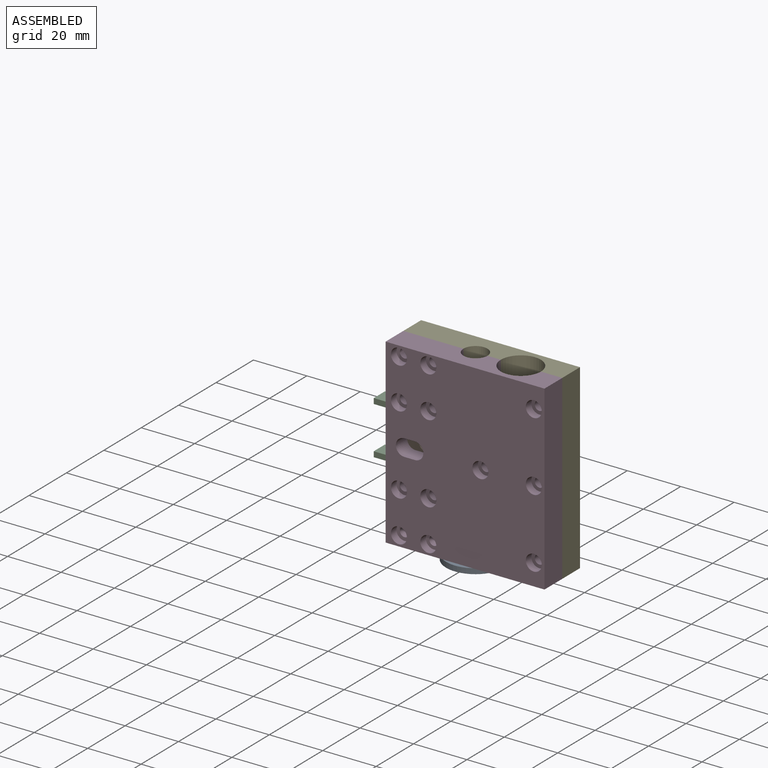
[diagram: assembled view]
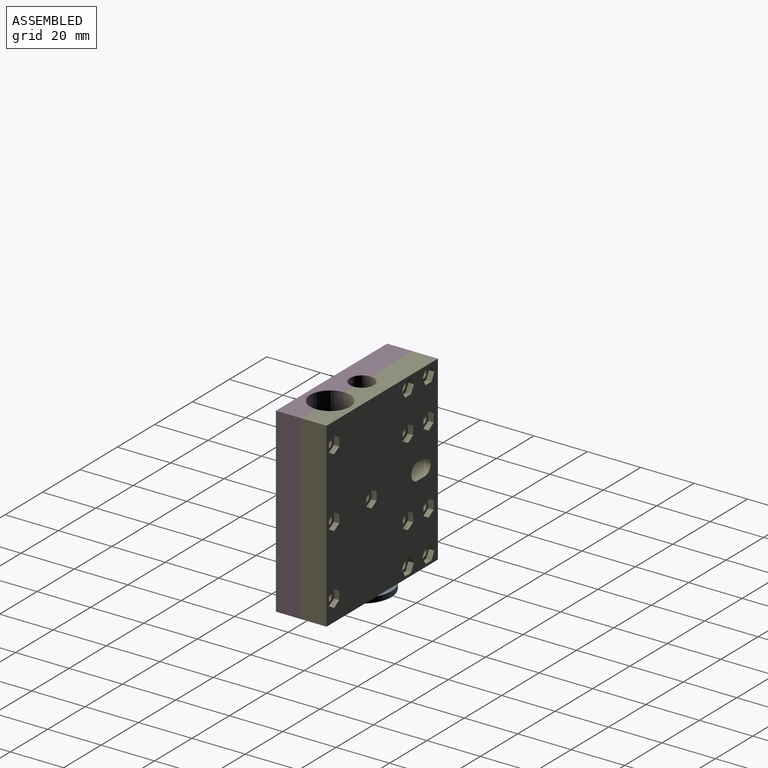
[diagram: assembled view, second angle]
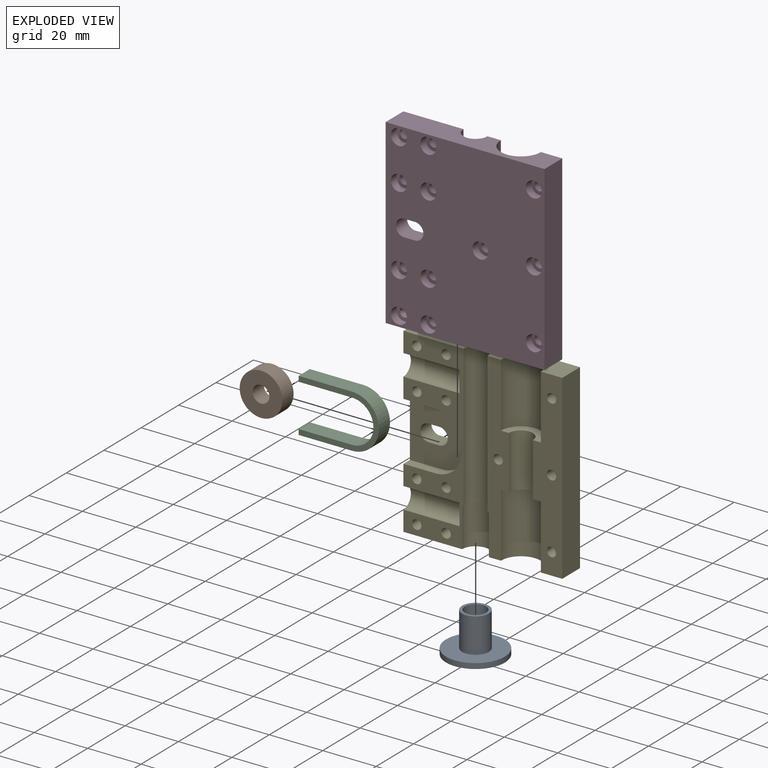
[diagram: exploded view]
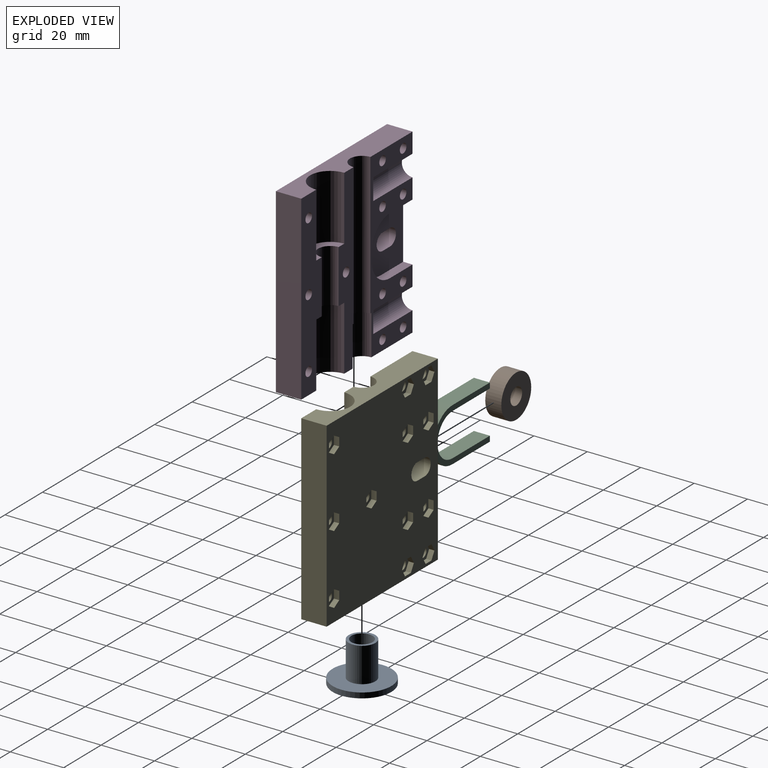
[diagram: exploded view, second angle]
ASSEMBLY  parts=5 mates=4
PART A: 6 faces, bbox 22x22x15 mm
  f0: cylinder r=4mm len=15mm, axis (0,0,1), area 377mm2, adj f2,f5
  f1: cylinder r=11mm len=22mm, axis (0,0,1), area 138.2mm2, adj f2,f3
  f2: plane 22x22mm, normal (0,0,-1), area 329.9mm2, adj f0,f1
  f3: plane 22x22mm, normal (0,0,1), area 301.6mm2, adj f1,f4
  f4: cylinder r=5mm len=13mm, axis (0,0,-1), area 408.4mm2, adj f3,f5
  f5: plane 10x10mm, normal (0,0,1), area 28.3mm2, adj f0,f4
PART B: 4 faces, bbox 16x6x16 mm
  f0: cylinder r=3.15mm len=6.3mm, axis (0,1,0), area 118.8mm2, adj f2,f3
  f1: cylinder r=8mm len=16mm, axis (0,1,0), area 301.6mm2, adj f2,f3
  f2: plane 16x16mm, normal (0,-1,0), area 169.9mm2, adj f0,f1
  f3: plane 16x16mm, normal (0,1,0), area 169.9mm2, adj f0,f1
PART C: 10 faces, bbox 30x6x20 mm
  f0: plane 20x6mm, normal (0,0,-1), area 120mm2, adj f1,f7,f8,f9
  f1: cylinder r=10mm len=20mm, axis (0,1,0), area 188.5mm2, adj f0,f2,f8,f9
  f2: plane 20x6mm, normal (0,0,1), area 120mm2, adj f1,f3,f8,f9
  f3: plane 6x2mm, normal (-1,0,0), area 12mm2, adj f2,f4,f8,f9
  f4: plane 20x6mm, normal (0,0,-1), area 120mm2, adj f3,f5,f8,f9
  f5: cylinder r=8mm len=16mm, axis (0,1,0), area 150.8mm2, adj f4,f6,f8,f9
  f6: plane 20x6mm, normal (0,0,1), area 120mm2, adj f5,f7,f8,f9
  f7: plane 6x2mm, normal (-1,0,0), area 12mm2, adj f0,f6,f8,f9
  f8: plane 30x20mm, normal (0,-1,0), area 136.5mm2, adj f0,f1,f2,f3,f4,f5,f6,f7
  f9: plane 30x20mm, normal (0,1,0), area 136.5mm2, adj f0,f1,f2,f3,f4,f5,f6,f7
PART D: 66 faces, bbox 59.5x9.5x68 mm
  f0: plane 6x6mm, normal (0,-1,0), area 18.7mm2, adj f1,f2
  f1: cylinder r=1.75mm len=6.5mm, axis (0,-1,0), area 71.5mm2, adj f0,f63
  f2: cylinder r=3mm len=6mm, axis (0,-1,0), area 56.5mm2, adj f0,f40
  f3: plane 6x6mm, normal (0,-1,0), area 18.7mm2, adj f4,f5
  f4: cylinder r=1.75mm len=6.5mm, axis (0,-1,0), area 71.5mm2, adj f3,f63
  f5: cylinder r=3mm len=6mm, axis (0,-1,0), area 56.5mm2, adj f3,f40
  f6: plane 6x6mm, normal (0,-1,0), area 18.7mm2, adj f7,f8
  f7: cylinder r=1.75mm len=6.5mm, axis (0,-1,0), area 71.5mm2, adj f6,f64
  f8: cylinder r=3mm len=6mm, axis (0,-1,0), area 56.5mm2, adj f6,f40
  f9: plane 6x6mm, normal (0,-1,0), area 18.7mm2, adj f10,f11
  f10: cylinder r=1.75mm len=6.5mm, axis (0,-1,0), area 71.5mm2, adj f9,f63
  f11: cylinder r=3mm len=6mm, axis (0,-1,0), area 56.5mm2, adj f9,f40
  f12: plane 6x6mm, normal (0,-1,0), area 18.7mm2, adj f13,f14
  f13: cylinder r=1.75mm len=6.5mm, axis (0,-1,0), area 71.5mm2, adj f12,f63
  f14: cylinder r=3mm len=6mm, axis (0,-1,0), area 56.5mm2, adj f12,f40
  f15: plane 6x6mm, normal (0,-1,0), area 18.7mm2, adj f16,f17
  f16: cylinder r=1.75mm len=6.5mm, axis (0,-1,0), area 71.5mm2, adj f15,f65
  f17: cylinder r=3mm len=6mm, axis (0,-1,0), area 56.5mm2, adj f15,f40
  f18: plane 6x6mm, normal (0,-1,0), area 18.7mm2, adj f19,f20
  f19: cylinder r=1.75mm len=6.5mm, axis (0,-1,0), area 71.5mm2, adj f18,f65
  f20: cylinder r=3mm len=6mm, axis (0,-1,0), area 56.5mm2, adj f18,f40
  f21: plane 6x6mm, normal (0,-1,0), area 18.7mm2, adj f22,f23
  f22: cylinder r=1.75mm len=6.5mm, axis (0,-1,0), area 71.5mm2, adj f21,f65
  f23: cylinder r=3mm len=6mm, axis (0,-1,0), area 56.5mm2, adj f21,f40
  f24: plane 6x6mm, normal (0,-1,0), area 18.7mm2, adj f25,f26
  f25: cylinder r=1.75mm len=6.5mm, axis (0,-1,0), area 71.5mm2, adj f24,f63
  f26: cylinder r=3mm len=6mm, axis (0,-1,0), area 56.5mm2, adj f24,f40
  f27: plane 6x6mm, normal (0,-1,0), area 18.7mm2, adj f28,f29
  f28: cylinder r=1.75mm len=6.5mm, axis (0,-1,0), area 71.5mm2, adj f27,f63
  f29: cylinder r=3mm len=6mm, axis (0,-1,0), area 56.5mm2, adj f27,f40
  f30: plane 6x6mm, normal (0,-1,0), area 18.7mm2, adj f31,f32
  f31: cylinder r=1.75mm len=6.5mm, axis (0,-1,0), area 71.5mm2, adj f30,f63
  f32: cylinder r=3mm len=6mm, axis (0,-1,0), area 56.5mm2, adj f30,f40
  f33: plane 6x6mm, normal (0,-1,0), area 18.7mm2, adj f34,f35
  f34: cylinder r=1.75mm len=6.5mm, axis (0,-1,0), area 71.5mm2, adj f33,f63
  f35: cylinder r=3mm len=6mm, axis (0,-1,0), area 56.5mm2, adj f33,f40
  f36: plane 6x4mm, normal (0,0,1), area 24mm2, adj f37,f39,f40,f41
  f37: cylinder r=3.15mm len=6.3mm, axis (0,-1,0), area 59.4mm2, adj f36,f38,f40,f41
  f38: plane 6x4mm, normal (0,0,-1), area 24mm2, adj f37,f39,f40,f41
  f39: cylinder r=3.15mm len=6.3mm, axis (0,-1,0), area 59.4mm2, adj f36,f38,f40,f41
  f40: plane 68x59.5mm, normal (0,-1,0), area 3650.3mm2, adj f2,f5,f8,f11,f14,f17,f20,f23
  f41: plane 22x22mm, normal (0,1,0), area 384.7mm2, adj f36,f37,f38,f39,f44,f45,f46,f47
  f42: plane 8x4mm, normal (-1,0,0), area 25.1mm2, adj f43,f63
  f43: cylinder r=4mm len=21mm, axis (-1,0,0), area 263.9mm2, adj f42,f60,f63
  f44: cylinder r=10mm len=10mm, axis (0,1,0), area 55mm2, adj f41,f46,f47,f63
  f45: cylinder r=10mm len=10mm, axis (0,-1,0), area 55mm2, adj f41,f46,f48,f63
  f46: plane 3.5x2mm, normal (-1,0,0), area 7mm2, adj f41,f44,f45,f63
  f47: plane 12x3.5mm, normal (0,0,-1), area 42mm2, adj f41,f44,f60,f63
  f48: plane 12x3.5mm, normal (0,0,1), area 42mm2, adj f41,f45,f60,f63
  f49: plane 8x4mm, normal (-1,0,0), area 25.1mm2, adj f50,f63
  f50: cylinder r=4mm len=21mm, axis (-1,0,0), area 263.9mm2, adj f49,f60,f63
  f51: plane 10x5mm, normal (0,0,-1), area 7.5mm2, adj f52,f62,f63,f64
  f52: cylinder r=5mm len=15mm, axis (0,0,-1), area 235.6mm2, adj f51,f53,f63,f64
  f53: plane 59.5x9.5mm, normal (0,0,-1), area 437.6mm2, adj f40,f52,f57,f59,f60,f63,f64,f65
  f54: plane 15x7.5mm, normal (0,0,1), area 56.5mm2, adj f56,f61,f64,f65
  f55: plane 15x7.5mm, normal (0,0,-1), area 56.5mm2, adj f56,f57,f64,f65
  f56: cylinder r=4.5mm len=20mm, axis (0,0,1), area 282.7mm2, adj f54,f55,f64,f65
  f57: cylinder r=7.5mm len=24mm, axis (0,0,-1), area 565.5mm2, adj f53,f55,f64,f65
  f58: plane 59.5x9.5mm, normal (0,0,1), area 445.1mm2, adj f40,f59,f60,f61,f62,f63,f64,f65
  f59: plane 68x9.5mm, normal (1,0,0), area 646mm2, adj f40,f53,f58,f65
  f60: plane 68x9.5mm, normal (-1,0,0), area 518.7mm2, adj f40,f41,f43,f47,f48,f50,f53,f58
  f61: cylinder r=7.5mm len=24mm, axis (0,0,-1), area 565.5mm2, adj f54,f58,f64,f65
  f62: cylinder r=4.5mm len=53mm, axis (0,0,-1), area 749.3mm2, adj f51,f58,f63,f64
  f63: plane 68x22.5mm, normal (0,1,0), area 668.5mm2, adj f1,f4,f10,f13,f25,f28,f31,f34
  f64: plane 68x8mm, normal (0,1,0), area 382.9mm2, adj f7,f51,f52,f53,f54,f55,f56,f57
  f65: plane 68x11mm, normal (0,1,0), area 575.1mm2, adj f16,f19,f22,f53,f54,f55,f56,f57
PART E: 126 faces, bbox 59.5x9.5x68 mm
  f0: cylinder r=4.5mm len=53mm, axis (0,0,-1), area 749.3mm2, adj f17,f30,f123,f124
  f1: cylinder r=1.75mm len=7.5mm, axis (0,-1,0), area 82.5mm2, adj f116,f123
  f2: cylinder r=1.75mm len=7.5mm, axis (0,-1,0), area 82.5mm2, adj f109,f124
  f3: cylinder r=1.75mm len=7.5mm, axis (0,-1,0), area 82.5mm2, adj f108,f123
  f4: cylinder r=1.75mm len=7.5mm, axis (0,-1,0), area 82.5mm2, adj f101,f123
  f5: cylinder r=1.75mm len=7.5mm, axis (0,-1,0), area 82.5mm2, adj f88,f125
  f6: cylinder r=1.75mm len=7.5mm, axis (0,-1,0), area 82.5mm2, adj f81,f125
  f7: cylinder r=1.75mm len=7.5mm, axis (0,-1,0), area 82.5mm2, adj f80,f125
  f8: cylinder r=1.75mm len=7.5mm, axis (0,-1,0), area 82.5mm2, adj f73,f123
  f9: cylinder r=1.75mm len=7.5mm, axis (0,-1,0), area 82.5mm2, adj f60,f123
  f10: cylinder r=1.75mm len=7.5mm, axis (0,-1,0), area 82.5mm2, adj f59,f123
  f11: cylinder r=1.75mm len=7.5mm, axis (0,-1,0), area 82.5mm2, adj f46,f123
  f12: cylinder r=1.75mm len=7.5mm, axis (0,-1,0), area 82.5mm2, adj f39,f123
  f13: cylinder r=7.5mm len=24mm, axis (0,0,-1), area 565.5mm2, adj f17,f28,f124,f125
  f14: plane 68x9.5mm, normal (-1,0,0), area 518.7mm2, adj f17,f18,f19,f21,f23,f24,f33,f34
  f15: plane 68x9.5mm, normal (1,0,0), area 646mm2, adj f17,f18,f33,f125
  f16: cylinder r=7.5mm len=24mm, axis (0,0,-1), area 565.5mm2, adj f18,f27,f124,f125
  f17: plane 59.5x9.5mm, normal (0,0,1), area 445.1mm2, adj f0,f13,f14,f15,f33,f123,f124,f125
  f18: plane 59.5x9.5mm, normal (0,0,-1), area 437.6mm2, adj f14,f15,f16,f29,f33,f123,f124,f125
  f19: cylinder r=4mm len=21mm, axis (-1,0,0), area 263.9mm2, adj f14,f20,f123
  f20: plane 8x4mm, normal (-1,0,0), area 25.1mm2, adj f19,f123
  f21: cylinder r=4mm len=21mm, axis (-1,0,0), area 263.9mm2, adj f14,f22,f123
  f22: plane 8x4mm, normal (-1,0,0), area 25.1mm2, adj f21,f123
  f23: plane 12x3.5mm, normal (0,0,1), area 42mm2, adj f14,f32,f34,f123
  f24: plane 12x3.5mm, normal (0,0,-1), area 42mm2, adj f14,f31,f34,f123
  f25: plane 3.5x2mm, normal (-1,0,0), area 7mm2, adj f31,f32,f34,f123
  f26: cylinder r=4.5mm len=20mm, axis (0,0,1), area 282.7mm2, adj f27,f28,f124,f125
  f27: plane 15x7.5mm, normal (0,0,-1), area 56.5mm2, adj f16,f26,f124,f125
  f28: plane 15x7.5mm, normal (0,0,1), area 56.5mm2, adj f13,f26,f124,f125
  f29: cylinder r=5mm len=15mm, axis (0,0,-1), area 235.6mm2, adj f18,f30,f123,f124
  f30: plane 10x5mm, normal (0,0,-1), area 7.5mm2, adj f0,f29,f123,f124
  f31: cylinder r=10mm len=10mm, axis (0,1,0), area 55mm2, adj f24,f25,f34,f123
  f32: cylinder r=10mm len=10mm, axis (0,-1,0), area 55mm2, adj f23,f25,f34,f123
  f33: plane 68x59.5mm, normal (0,1,0), area 3675.3mm2, adj f14,f15,f17,f18,f35,f36,f37,f38
  f34: plane 22x22mm, normal (0,-1,0), area 384.7mm2, adj f14,f23,f24,f25,f31,f32,f35,f36
  f35: plane 6x4mm, normal (0,0,1), area 24mm2, adj f33,f34,f36,f38
  f36: cylinder r=3.15mm len=6.3mm, axis (0,-1,0), area 59.4mm2, adj f33,f34,f35,f37
  f37: plane 6x4mm, normal (0,0,-1), area 24mm2, adj f33,f34,f36,f38
  f38: cylinder r=3.15mm len=6.3mm, axis (0,-1,0), area 59.4mm2, adj f33,f34,f35,f37
  f39: plane 6.35x5.5mm, normal (0,1,0), area 16.6mm2, adj f12,f40,f41,f42,f43,f44,f45
  f40: plane 3.18x2mm, normal (0,0,-1), area 6.4mm2, adj f33,f39,f41,f45
  f41: plane 2.75x2mm, normal (-0.87,0,-0.5), area 6.4mm2, adj f33,f39,f40,f42
  f42: plane 2.75x2mm, normal (-0.87,0,0.5), area 6.4mm2, adj f33,f39,f41,f43
  f43: plane 3.18x2mm, normal (0,0,1), area 6.4mm2, adj f33,f39,f42,f44
  f44: plane 2.75x2mm, normal (0.87,0,0.5), area 6.4mm2, adj f33,f39,f43,f45
  f45: plane 2.75x2mm, normal (0.87,0,-0.5), area 6.4mm2, adj f33,f39,f40,f44
  f46: plane 6.35x5.5mm, normal (0,1,0), area 16.6mm2, adj f11,f47,f48,f49,f50,f51,f52
  f47: plane 3.18x2mm, normal (0,0,-1), area 6.4mm2, adj f33,f46,f48,f52
  f48: plane 2.75x2mm, normal (-0.87,0,-0.5), area 6.4mm2, adj f33,f46,f47,f49
  f49: plane 2.75x2mm, normal (-0.87,0,0.5), area 6.4mm2, adj f33,f46,f48,f50
  f50: plane 3.18x2mm, normal (0,0,1), area 6.4mm2, adj f33,f46,f49,f51
  f51: plane 2.75x2mm, normal (0.87,0,0.5), area 6.4mm2, adj f33,f46,f50,f52
  f52: plane 2.75x2mm, normal (0.87,0,-0.5), area 6.4mm2, adj f33,f46,f47,f51
  f53: plane 2.75x2mm, normal (0.5,0,-0.87), area 6.4mm2, adj f33,f54,f58,f59
  f54: plane 2.75x2mm, normal (-0.5,0,-0.87), area 6.4mm2, adj f33,f53,f55,f59
  f55: plane 3.18x2mm, normal (-1,0,0), area 6.4mm2, adj f33,f54,f56,f59
  f56: plane 2.75x2mm, normal (-0.5,0,0.87), area 6.4mm2, adj f33,f55,f57,f59
  f57: plane 2.75x2mm, normal (0.5,0,0.87), area 6.4mm2, adj f33,f56,f58,f59
  f58: plane 3.18x2mm, normal (1,0,0), area 6.4mm2, adj f33,f53,f57,f59
  f59: plane 6.35x5.5mm, normal (0,1,0), area 16.6mm2, adj f10,f53,f54,f55,f56,f57,f58
  f60: plane 6.35x5.5mm, normal (0,1,0), area 16.6mm2, adj f9,f61,f62,f63,f64,f65,f66
  f61: plane 2.75x2mm, normal (0.5,0,-0.87), area 6.4mm2, adj f33,f60,f62,f66
  f62: plane 2.75x2mm, normal (-0.5,0,-0.87), area 6.4mm2, adj f33,f60,f61,f63
  f63: plane 3.18x2mm, normal (-1,0,0), area 6.4mm2, adj f33,f60,f62,f64
  f64: plane 2.75x2mm, normal (-0.5,0,0.87), area 6.4mm2, adj f33,f60,f63,f65
  f65: plane 2.75x2mm, normal (0.5,0,0.87), area 6.4mm2, adj f33,f60,f64,f66
  f66: plane 3.18x2mm, normal (1,0,0), area 6.4mm2, adj f33,f60,f61,f65
  f67: plane 3.18x2mm, normal (1,0,0), area 6.4mm2, adj f33,f68,f72,f73
  f68: plane 2.75x2mm, normal (0.5,0,-0.87), area 6.4mm2, adj f33,f67,f69,f73
  f69: plane 2.75x2mm, normal (-0.5,0,-0.87), area 6.4mm2, adj f33,f68,f70,f73
  f70: plane 3.18x2mm, normal (-1,0,0), area 6.4mm2, adj f33,f69,f71,f73
  f71: plane 2.75x2mm, normal (-0.5,0,0.87), area 6.4mm2, adj f33,f70,f72,f73
  f72: plane 2.75x2mm, normal (0.5,0,0.87), area 6.4mm2, adj f33,f67,f71,f73
  f73: plane 6.35x5.5mm, normal (0,1,0), area 16.6mm2, adj f8,f67,f68,f69,f70,f71,f72
  f74: plane 2.75x2mm, normal (0.5,0,0.87), area 6.4mm2, adj f33,f75,f79,f80
  f75: plane 3.18x2mm, normal (1,0,0), area 6.4mm2, adj f33,f74,f76,f80
  f76: plane 2.75x2mm, normal (0.5,0,-0.87), area 6.4mm2, adj f33,f75,f77,f80
  f77: plane 2.75x2mm, normal (-0.5,0,-0.87), area 6.4mm2, adj f33,f76,f78,f80
  f78: plane 3.18x2mm, normal (-1,0,0), area 6.4mm2, adj f33,f77,f79,f80
  f79: plane 2.75x2mm, normal (-0.5,0,0.87), area 6.4mm2, adj f33,f74,f78,f80
  f80: plane 6.35x5.5mm, normal (0,1,0), area 16.6mm2, adj f7,f74,f75,f76,f77,f78,f79
  f81: plane 6.35x5.5mm, normal (0,1,0), area 16.6mm2, adj f6,f82,f83,f84,f85,f86,f87
  f82: plane 2.75x2mm, normal (0.5,0,-0.87), area 6.4mm2, adj f33,f81,f83,f87
  f83: plane 2.75x2mm, normal (-0.5,0,-0.87), area 6.4mm2, adj f33,f81,f82,f84
  f84: plane 3.18x2mm, normal (-1,0,0), area 6.4mm2, adj f33,f81,f83,f85
  f85: plane 2.75x2mm, normal (-0.5,0,0.87), area 6.4mm2, adj f33,f81,f84,f86
  f86: plane 2.75x2mm, normal (0.5,0,0.87), area 6.4mm2, adj f33,f81,f85,f87
  f87: plane 3.18x2mm, normal (1,0,0), area 6.4mm2, adj f33,f81,f82,f86
  f88: plane 6.35x5.5mm, normal (0,1,0), area 16.6mm2, adj f5,f89,f90,f91,f92,f93,f94
  f89: plane 2.75x2mm, normal (0.5,0,-0.87), area 6.4mm2, adj f33,f88,f90,f94
  f90: plane 2.75x2mm, normal (-0.5,0,-0.87), area 6.4mm2, adj f33,f88,f89,f91
  f91: plane 3.18x2mm, normal (-1,0,0), area 6.4mm2, adj f33,f88,f90,f92
  f92: plane 2.75x2mm, normal (-0.5,0,0.87), area 6.4mm2, adj f33,f88,f91,f93
  f93: plane 2.75x2mm, normal (0.5,0,0.87), area 6.4mm2, adj f33,f88,f92,f94
  f94: plane 3.18x2mm, normal (1,0,0), area 6.4mm2, adj f33,f88,f89,f93
  f95: plane 3.18x2mm, normal (0,0,-1), area 6.4mm2, adj f33,f96,f100,f101
  f96: plane 2.75x2mm, normal (-0.87,0,-0.5), area 6.4mm2, adj f33,f95,f97,f101
  f97: plane 2.75x2mm, normal (-0.87,0,0.5), area 6.4mm2, adj f33,f96,f98,f101
  f98: plane 3.18x2mm, normal (0,0,1), area 6.4mm2, adj f33,f97,f99,f101
  f99: plane 2.75x2mm, normal (0.87,0,0.5), area 6.4mm2, adj f33,f98,f100,f101
  f100: plane 2.75x2mm, normal (0.87,0,-0.5), area 6.4mm2, adj f33,f95,f99,f101
  f101: plane 6.35x5.5mm, normal (0,1,0), area 16.6mm2, adj f4,f95,f96,f97,f98,f99,f100
  f102: plane 3.18x2mm, normal (0,0,-1), area 6.4mm2, adj f33,f103,f107,f108
  f103: plane 2.75x2mm, normal (-0.87,0,-0.5), area 6.4mm2, adj f33,f102,f104,f108
  f104: plane 2.75x2mm, normal (-0.87,0,0.5), area 6.4mm2, adj f33,f103,f105,f108
  f105: plane 3.18x2mm, normal (0,0,1), area 6.4mm2, adj f33,f104,f106,f108
  f106: plane 2.75x2mm, normal (0.87,0,0.5), area 6.4mm2, adj f33,f105,f107,f108
  f107: plane 2.75x2mm, normal (0.87,0,-0.5), area 6.4mm2, adj f33,f102,f106,f108
  f108: plane 6.35x5.5mm, normal (0,1,0), area 16.6mm2, adj f3,f102,f103,f104,f105,f106,f107
  f109: plane 6.35x5.5mm, normal (0,1,0), area 16.6mm2, adj f2,f110,f111,f112,f113,f114,f115
  f110: plane 2.75x2mm, normal (0.5,0,-0.87), area 6.4mm2, adj f33,f109,f111,f115
  f111: plane 2.75x2mm, normal (-0.5,0,-0.87), area 6.4mm2, adj f33,f109,f110,f112
  f112: plane 3.18x2mm, normal (-1,0,0), area 6.4mm2, adj f33,f109,f111,f113
  f113: plane 2.75x2mm, normal (-0.5,0,0.87), area 6.4mm2, adj f33,f109,f112,f114
  f114: plane 2.75x2mm, normal (0.5,0,0.87), area 6.4mm2, adj f33,f109,f113,f115
  f115: plane 3.18x2mm, normal (1,0,0), area 6.4mm2, adj f33,f109,f110,f114
  f116: plane 6.35x5.5mm, normal (0,1,0), area 16.6mm2, adj f1,f117,f118,f119,f120,f121,f122
  f117: plane 2.75x2mm, normal (0.5,0,-0.87), area 6.4mm2, adj f33,f116,f118,f122
  f118: plane 2.75x2mm, normal (-0.5,0,-0.87), area 6.4mm2, adj f33,f116,f117,f119
  f119: plane 3.18x2mm, normal (-1,0,0), area 6.4mm2, adj f33,f116,f118,f120
  f120: plane 2.75x2mm, normal (-0.5,0,0.87), area 6.4mm2, adj f33,f116,f119,f121
  f121: plane 2.75x2mm, normal (0.5,0,0.87), area 6.4mm2, adj f33,f116,f120,f122
  f122: plane 3.18x2mm, normal (1,0,0), area 6.4mm2, adj f33,f116,f117,f121
  f123: plane 68x22.5mm, normal (0,-1,0), area 668.5mm2, adj f0,f1,f3,f4,f8,f9,f10,f11
  f124: plane 68x8mm, normal (0,-1,0), area 382.9mm2, adj f0,f2,f13,f16,f17,f18,f26,f27
  f125: plane 68x11mm, normal (0,-1,0), area 575.1mm2, adj f5,f6,f7,f13,f15,f16,f17,f18
PLACE A t=(0,-18.3,0)mm
PLACE B t=(0,-18.3,0)mm
PLACE C t=(0,-18.3,0)mm
PLACE D t=(0,-18.3,0)mm
PLACE E t=(0,-18.3,0)mm
MATE fastened B.f0 <-> C.f1  axis (0,-1,0) through (-16,-21.3,34)mm
MATE fastened A.f0 <-> E.f29  axis (0,0,-1) through (0,-18.3,0)mm
MATE fastened B.f0 <-> E.f38  axis (0,1,0) through (-16,-15.3,34)mm
MATE fastened E.f125 <-> D.f65  axis (0,-1,0) through (28.5,-18.3,0)mm
